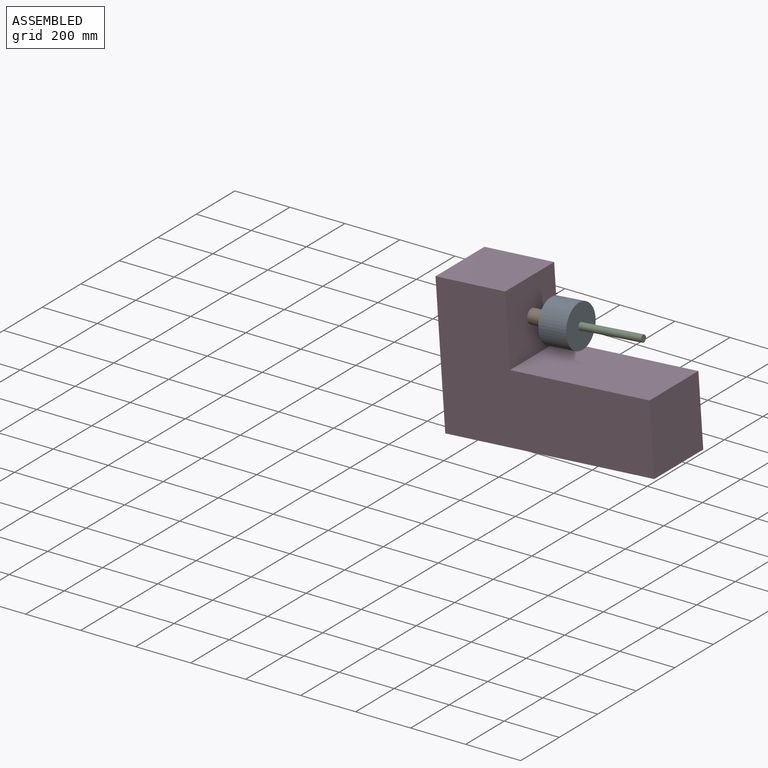
[diagram: assembled view]
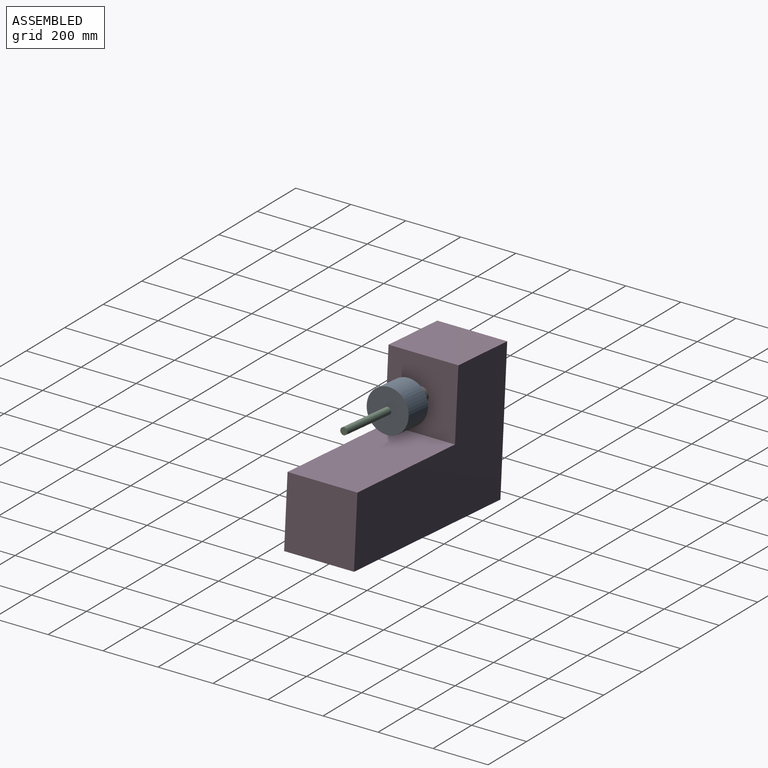
[diagram: assembled view, second angle]
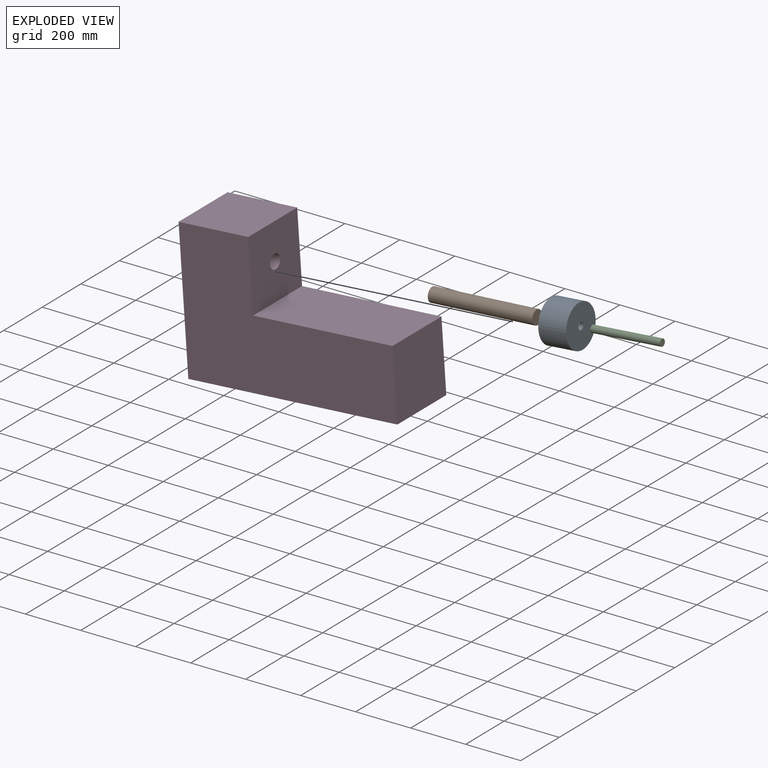
[diagram: exploded view]
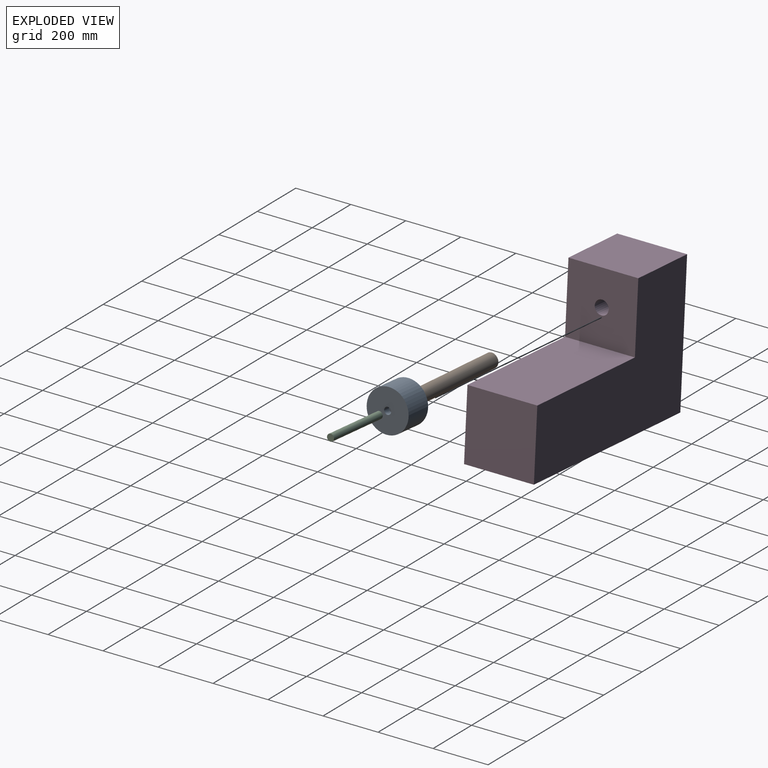
[diagram: exploded view, second angle]
ASSEMBLY  parts=4 mates=5
PART A: 7 faces, bbox 152.4x152.4x102.5 mm
  f0: cylinder r=76.2mm len=152.4mm, axis (0,0,-1), area 48643.9mm2, adj f1,f2
  f1: plane 152.4x152.4mm, normal (0,0,1), area 17734.8mm2, adj f0,f3
  f2: plane 152.4x152.4mm, normal (0,0,-1), area 16214.3mm2, adj f0,f5
  f3: cylinder r=12.7mm len=25.4mm, axis (0,0,1), area 2026.8mm2, adj f1,f4
  f4: plane 25.4x25.4mm, normal (0,0,1), area 506.7mm2, adj f3
  f5: cylinder r=25.4mm len=52.12mm, axis (-0.02,0,-1), area 8107.3mm2, adj f2,f6
  f6: plane 50.8x50.79mm, normal (-0.02,0,-1), area 2026.8mm2, adj f5
PART B: 3 faces, bbox 50.8x50.8x381 mm
  f0: cylinder r=25.4mm len=381mm, axis (0,0,-1), area 60804.9mm2, adj f1,f2
  f1: plane 50.8x50.8mm, normal (0,0,1), area 2026.8mm2, adj f0
  f2: plane 50.8x50.8mm, normal (0,0,-1), area 2026.8mm2, adj f0
PART C: 3 faces, bbox 25.4x25.4x254 mm
  f0: cylinder r=12.7mm len=254mm, axis (0,0,-1), area 20268.3mm2, adj f1,f2
  f1: plane 25.4x25.4mm, normal (0,0,1), area 506.7mm2, adj f0
  f2: plane 25.4x25.4mm, normal (0,0,-1), area 506.7mm2, adj f0
PART D: 9 faces, bbox 762x254x508 mm
  f0: plane 762x508mm, normal (0,-1,0), area 258064mm2, adj f1,f3,f4,f5,f6,f7
  f1: plane 254x254mm, normal (1,0,0), area 64516mm2, adj f0,f2,f3,f4
  f2: plane 762x508mm, normal (0,1,0), area 258064mm2, adj f1,f3,f4,f5,f6,f7
  f3: plane 508x254mm, normal (0,0,1), area 129032mm2, adj f0,f1,f2,f5
  f4: plane 762x254mm, normal (0,0,-1), area 193548mm2, adj f0,f1,f2,f6
  f5: plane 254x254mm, normal (1,0,0), area 62489.2mm2, adj f0,f2,f3,f7,f8
  f6: plane 508x254mm, normal (-1,0,0), area 127005.2mm2, adj f0,f2,f4,f7,f8
  f7: plane 254x254mm, normal (0,0,1), area 64516mm2, adj f0,f2,f5,f6
  f8: cylinder r=25.4mm len=254mm, axis (1,0,0), area 40536.6mm2, adj f5,f6
PLACE A rot(axis=(0,1,0),85deg) t=(-98.49,536.6,546.83)mm
PLACE B rot(axis=(0,1,0),86deg) t=(-427.89,536.6,523.8)mm
PLACE C rot(axis=(0,1,0),85deg) t=(-22.58,536.6,553.47)mm
PLACE D rot(axis=(0,-1,0),4deg) t=(105.45,536.6,179.16)mm
MATE cylindrical D.f8 <-> B.f0  axis (-1,0,-0.07) through (-427.89,536.6,523.8)mm
MATE planar D.f6 <-> B.f0  axis (-1,0,-0.07) through (-418.89,536.6,395.08)mm
MATE revolute A.f5 <-> B.f0  axis (-1,0,-0.07) through (-47.81,536.6,550.37)mm
MATE cylindrical A.f0 <-> C.f0  axis (1,0,0.09) through (2.72,536.6,555.69)mm
MATE planar A.f3 <-> C.f0  axis (1,0,0.09) through (-22.58,536.6,553.47)mm
